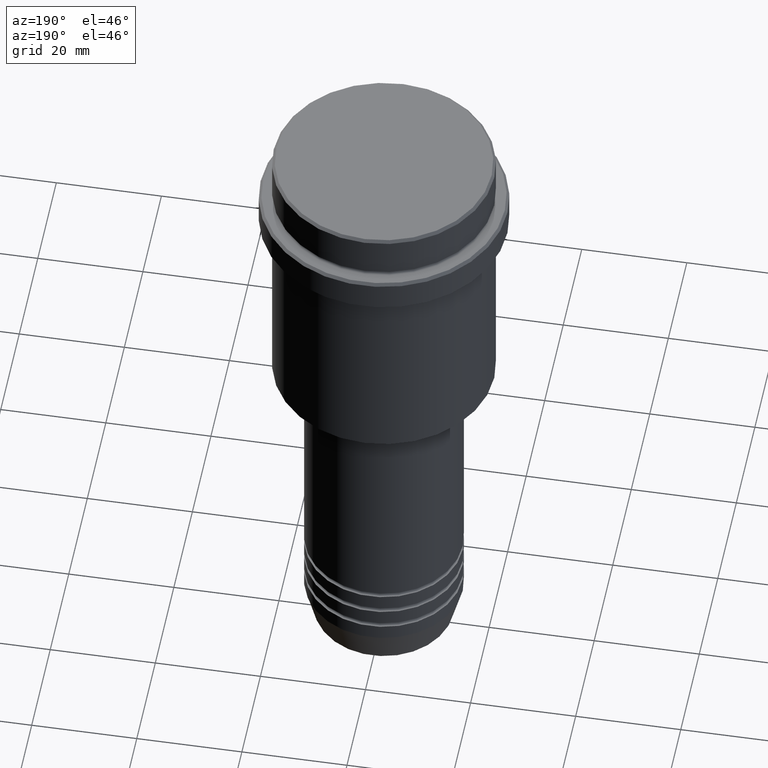
[diagram: clean part render]
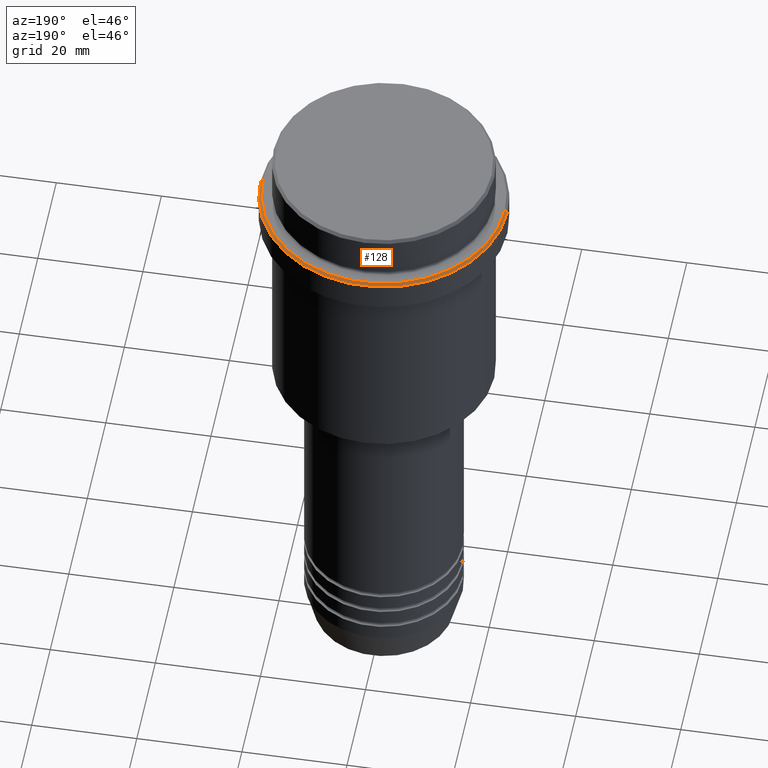
[diagram: same view with one face highlighted and labeled with its STEP entity id]
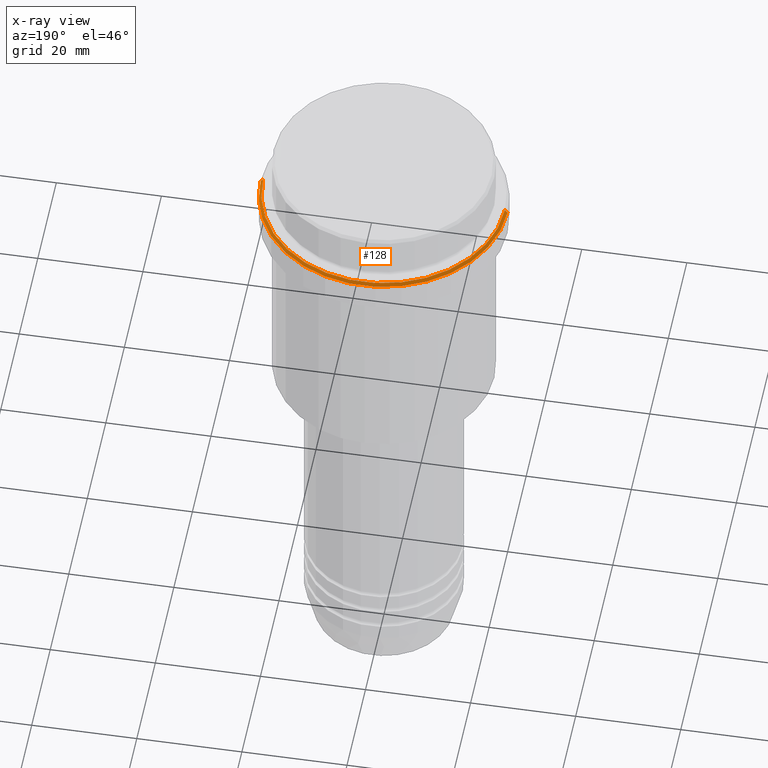
[diagram: x-ray of the same camera — body ghosted, the highlighted face saturated]
A machine part, auxiliary view. The second image highlights one B-rep face of the part: STEP entity #128.
The next image is the same camera in x-ray: the body ghosted, the highlighted face saturated — about 0% of this face is hidden behind the body in this view.
In plain terms, the highlighted conical surface has half-angle 45 deg.
Its self-contained STEP definition (entity closure, byte-faithful):
#37 = LINE ( 'NONE', #925, #96 ) ;
#74 = EDGE_LOOP ( 'NONE', ( #404, #428, #172, #886 ) ) ;
#96 = VECTOR ( 'NONE', #1368, 1000.000000000000000 ) ;
#116 = CARTESIAN_POINT ( 'NONE',  ( 22.99999999999998224, 2.847303808017595350E-15, -9.000000000000000000 ) ) ;
#128 = ADVANCED_FACE ( 'NONE', ( #262 ), #800, .T. ) ;
#172 = ORIENTED_EDGE ( 'NONE', *, *, #426, .F. ) ;
#233 = CIRCLE ( 'NONE', #644, 22.99999999999998224 ) ;
#262 = FACE_OUTER_BOUND ( 'NONE', #74, .T. ) ;
#290 = CARTESIAN_POINT ( 'NONE',  ( 0.000000000000000000, 0.000000000000000000, -9.000000000000000000 ) ) ;
#353 = CARTESIAN_POINT ( 'NONE',  ( 23.50000000000000000, 0.000000000000000000, -9.500000000000026645 ) ) ;
#364 = VERTEX_POINT ( 'NONE', #353 ) ;
#404 = ORIENTED_EDGE ( 'NONE', *, *, #1089, .F. ) ;
#426 = EDGE_CURVE ( 'NONE', #624, #364, #910, .T. ) ;
#428 = ORIENTED_EDGE ( 'NONE', *, *, #1289, .T. ) ;
#464 = CARTESIAN_POINT ( 'NONE',  ( 22.99999999999998224, 2.816687638038910380E-15, -9.000000000000000000 ) ) ;
#514 = DIRECTION ( 'NONE',  ( -0.000000000000000000, -0.000000000000000000, 1.000000000000000000 ) ) ;
#546 = AXIS2_PLACEMENT_3D ( 'NONE', #655, #760, #576 ) ;
#576 = DIRECTION ( 'NONE',  ( 1.000000000000000000, 0.000000000000000000, 0.000000000000000000 ) ) ;
#590 = CARTESIAN_POINT ( 'NONE',  ( 0.000000000000000000, 0.000000000000000000, -9.000000000000000000 ) ) ;
#624 = VERTEX_POINT ( 'NONE', #1272 ) ;
#632 = DIRECTION ( 'NONE',  ( 1.000000000000000000, 0.000000000000000000, 0.000000000000000000 ) ) ;
#644 = AXIS2_PLACEMENT_3D ( 'NONE', #290, #514, #632 ) ;
#655 = CARTESIAN_POINT ( 'NONE',  ( 0.000000000000000000, 0.000000000000000000, -9.500000000000026645 ) ) ;
#736 = VECTOR ( 'NONE', #761, 1000.000000000000000 ) ;
#760 = DIRECTION ( 'NONE',  ( 0.000000000000000000, 0.000000000000000000, -1.000000000000000000 ) ) ;
#761 = DIRECTION ( 'NONE',  ( 0.7071067811865401342, 8.659560562354842879E-17, -0.7071067811865549002 ) ) ;
#796 = VERTEX_POINT ( 'NONE', #1383 ) ;
#800 = CONICAL_SURFACE ( 'NONE', #1003, 22.99999999999998224, 0.7853981633974378429 ) ;
#883 = LINE ( 'NONE', #464, #736 ) ;
#886 = ORIENTED_EDGE ( 'NONE', *, *, #1063, .F. ) ;
#910 = CIRCLE ( 'NONE', #546, 23.50000000000000000 ) ;
#925 = CARTESIAN_POINT ( 'NONE',  ( -22.99999999999998224, 0.000000000000000000, -9.000000000000000000 ) ) ;
#956 = VERTEX_POINT ( 'NONE', #116 ) ;
#1003 = AXIS2_PLACEMENT_3D ( 'NONE', #590, #1005, #1335 ) ;
#1005 = DIRECTION ( 'NONE',  ( 0.000000000000000000, 0.000000000000000000, -1.000000000000000000 ) ) ;
#1063 = EDGE_CURVE ( 'NONE', #796, #624, #37, .T. ) ;
#1089 = EDGE_CURVE ( 'NONE', #956, #796, #233, .T. ) ;
#1272 = CARTESIAN_POINT ( 'NONE',  ( -23.50000000000000000, 2.877919977996280320E-15, -9.500000000000026645 ) ) ;
#1289 = EDGE_CURVE ( 'NONE', #956, #364, #883, .T. ) ;
#1335 = DIRECTION ( 'NONE',  ( -1.000000000000000000, 0.000000000000000000, 0.000000000000000000 ) ) ;
#1368 = DIRECTION ( 'NONE',  ( -0.7071067811865401342, 0.000000000000000000, -0.7071067811865549002 ) ) ;
#1383 = CARTESIAN_POINT ( 'NONE',  ( -22.99999999999998224, 0.000000000000000000, -9.000000000000000000 ) ) ;